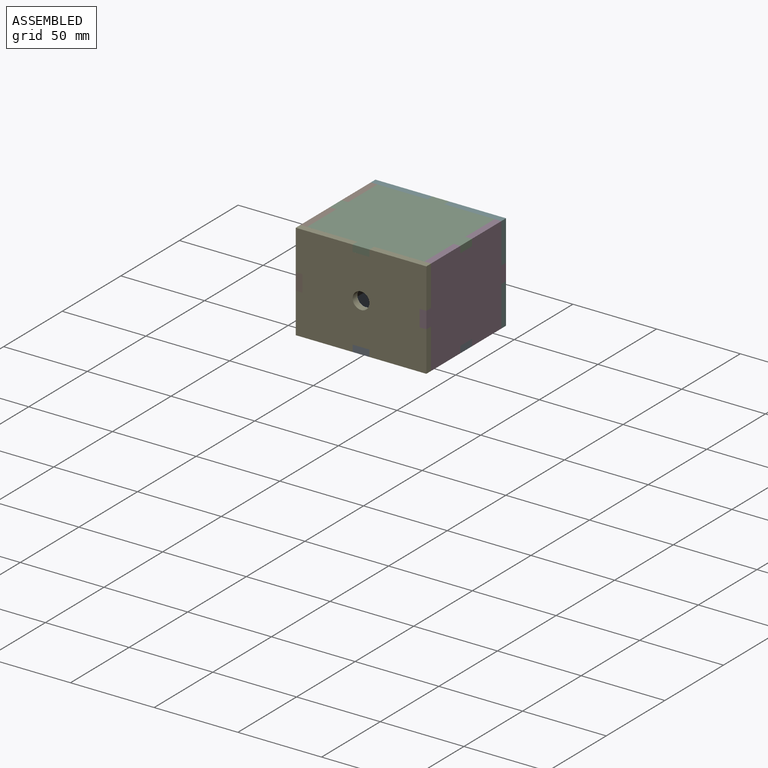
[diagram: assembled view]
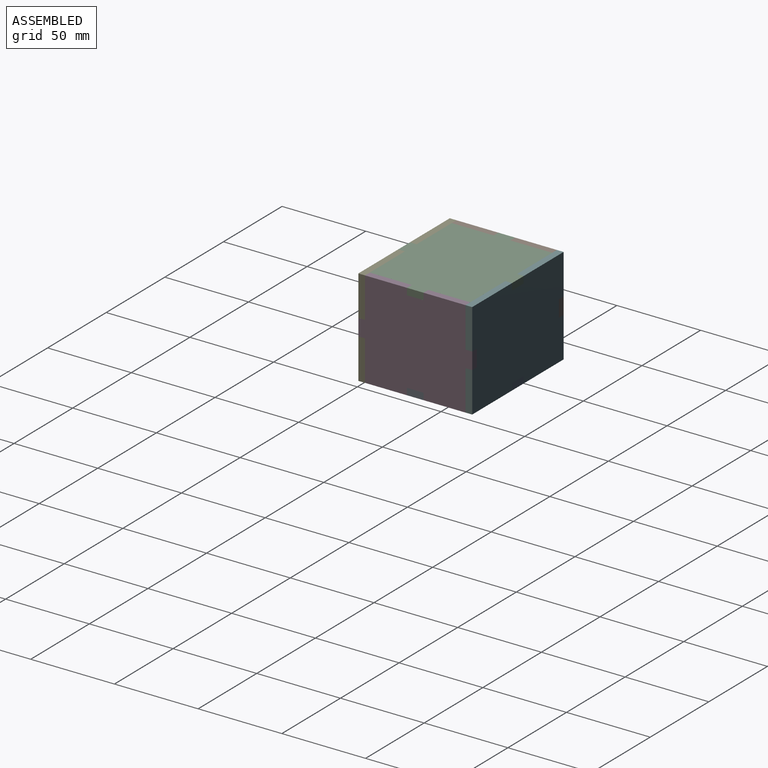
[diagram: assembled view, second angle]
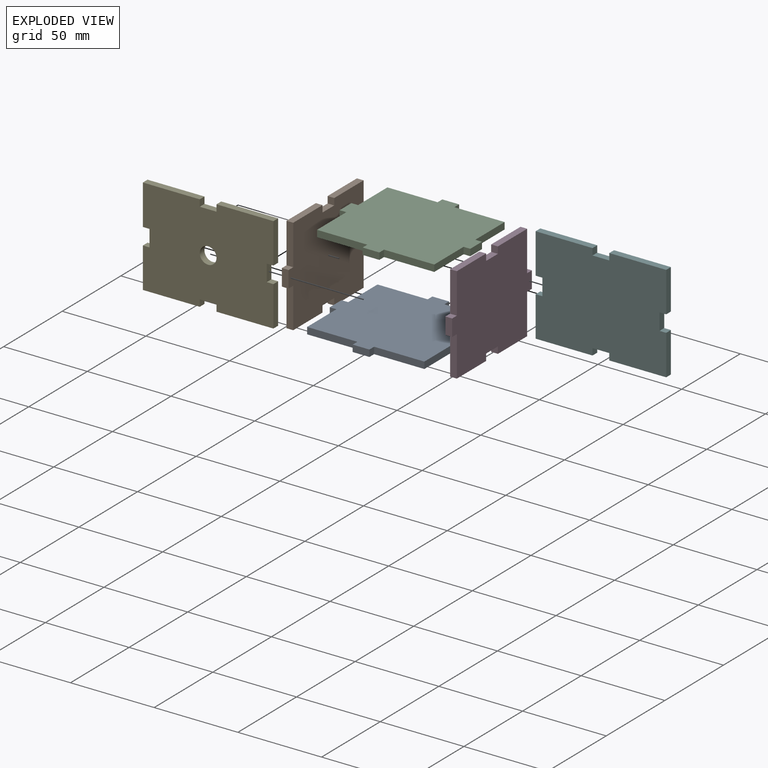
[diagram: exploded view]
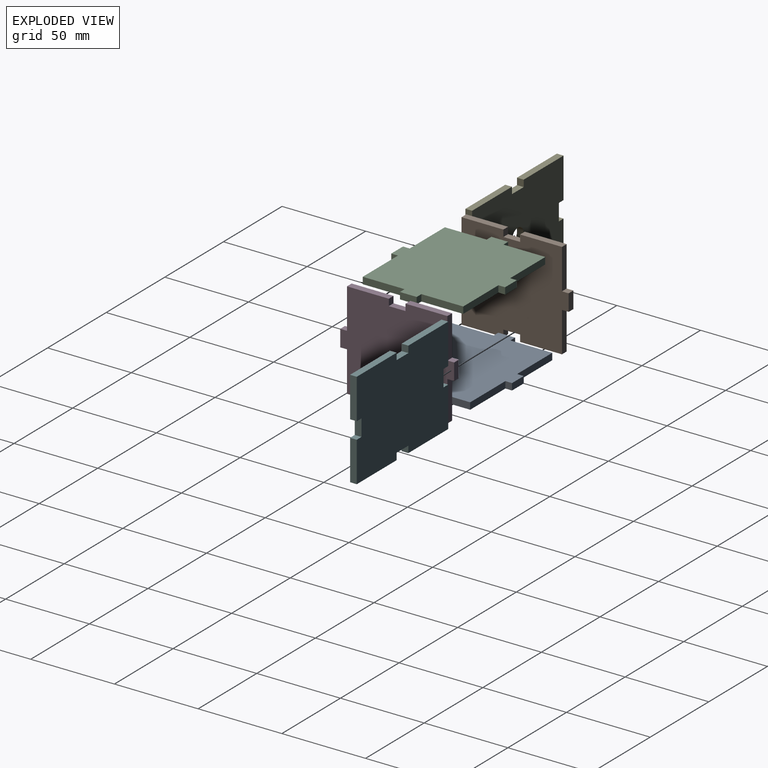
[diagram: exploded view, second angle]
ASSEMBLY  parts=6 mates=4
PART A: 22 faces, bbox 68x78x4 mm
  f0: plane 10x4mm, normal (0,1,0), area 40mm2, adj f1,f19,f20,f21
  f1: plane 4x4mm, normal (-1,0,0), area 16mm2, adj f0,f2,f20,f21
  f2: plane 25x4mm, normal (0,1,0), area 100mm2, adj f1,f3,f20,f21
  f3: plane 30x4mm, normal (-1,0,0), area 120mm2, adj f2,f4,f20,f21
  f4: plane 4x4mm, normal (0,1,0), area 16mm2, adj f3,f5,f20,f21
  f5: plane 10x4mm, normal (-1,0,0), area 40mm2, adj f4,f6,f20,f21
  f6: plane 4x4mm, normal (0,-1,0), area 16mm2, adj f5,f7,f20,f21
  f7: plane 30x4mm, normal (-1,0,0), area 120mm2, adj f6,f8,f20,f21
  f8: plane 25x4mm, normal (0,-1,0), area 100mm2, adj f7,f9,f20,f21
  f9: plane 4x4mm, normal (-1,0,0), area 16mm2, adj f8,f10,f20,f21
  f10: plane 10x4mm, normal (0,-1,0), area 40mm2, adj f9,f11,f20,f21
  f11: plane 4x4mm, normal (1,0,0), area 16mm2, adj f10,f12,f20,f21
  f12: plane 25x4mm, normal (0,-1,0), area 100mm2, adj f11,f13,f20,f21
  f13: plane 30x4mm, normal (1,0,0), area 120mm2, adj f12,f14,f20,f21
  f14: plane 4x4mm, normal (0,-1,0), area 16mm2, adj f13,f15,f20,f21
  f15: plane 10x4mm, normal (1,0,0), area 40mm2, adj f14,f16,f20,f21
  f16: plane 4x4mm, normal (0,1,0), area 16mm2, adj f15,f17,f20,f21
  f17: plane 30x4mm, normal (1,0,0), area 120mm2, adj f16,f18,f20,f21
  f18: plane 25x4mm, normal (0,1,0), area 100mm2, adj f17,f19,f20,f21
  f19: plane 4x4mm, normal (1,0,0), area 16mm2, adj f0,f18,f20,f21
  f20: plane 78x68mm, normal (0,0,1), area 4360mm2, adj f0,f1,f2,f3,f4,f5,f6,f7
  f21: plane 78x68mm, normal (0,0,-1), area 4360mm2, adj f0,f1,f2,f3,f4,f5,f6,f7
PART B: 22 faces, bbox 4x68x58 mm
  f0: plane 4x4mm, normal (0,0,1), area 16mm2, adj f1,f19,f20,f21
  f1: plane 24x4mm, normal (0,1,0), area 96mm2, adj f0,f2,f20,f21
  f2: plane 25x4mm, normal (0,0,1), area 100mm2, adj f1,f3,f20,f21
  f3: plane 4x4mm, normal (0,-1,0), area 16mm2, adj f2,f4,f20,f21
  f4: plane 10x4mm, normal (0,0,1), area 40mm2, adj f3,f5,f20,f21
  f5: plane 4x4mm, normal (0,1,0), area 16mm2, adj f4,f6,f20,f21
  f6: plane 25x4mm, normal (0,0,1), area 100mm2, adj f5,f7,f20,f21
  f7: plane 24x4mm, normal (0,-1,0), area 96mm2, adj f6,f8,f20,f21
  f8: plane 4x4mm, normal (0,0,1), area 16mm2, adj f7,f9,f20,f21
  f9: plane 10x4mm, normal (0,-1,0), area 40mm2, adj f8,f10,f20,f21
  f10: plane 4x4mm, normal (0,0,-1), area 16mm2, adj f9,f11,f20,f21
  f11: plane 24x4mm, normal (0,-1,0), area 96mm2, adj f10,f12,f20,f21
  f12: plane 25x4mm, normal (0,0,-1), area 100mm2, adj f11,f13,f20,f21
  f13: plane 4x4mm, normal (0,1,0), area 16mm2, adj f12,f14,f20,f21
  f14: plane 10x4mm, normal (0,0,-1), area 40mm2, adj f13,f15,f20,f21
  f15: plane 4x4mm, normal (0,-1,0), area 16mm2, adj f14,f16,f20,f21
  f16: plane 25x4mm, normal (0,0,-1), area 100mm2, adj f15,f17,f20,f21
  f17: plane 24x4mm, normal (0,1,0), area 96mm2, adj f16,f18,f20,f21
  f18: plane 4x4mm, normal (0,0,-1), area 16mm2, adj f17,f19,f20,f21
  f19: plane 10x4mm, normal (0,1,0), area 40mm2, adj f0,f18,f20,f21
  f20: plane 68x58mm, normal (1,0,0), area 3480mm2, adj f0,f1,f2,f3,f4,f5,f6,f7
  f21: plane 68x58mm, normal (-1,0,0), area 3480mm2, adj f0,f1,f2,f3,f4,f5,f6,f7
PART C: same geometry as A
PART D: same geometry as B
PART E: 23 faces, bbox 78x4x58 mm
  f0: plane 34x4mm, normal (0,0,1), area 136mm2, adj f1,f19,f21,f22
  f1: plane 24x4mm, normal (-1,0,0), area 96mm2, adj f0,f2,f21,f22
  f2: plane 4x4mm, normal (0,0,-1), area 16mm2, adj f1,f3,f21,f22
  f3: plane 10x4mm, normal (-1,0,0), area 40mm2, adj f2,f4,f21,f22
  f4: plane 4x4mm, normal (0,0,1), area 16mm2, adj f3,f5,f21,f22
  f5: plane 24x4mm, normal (-1,0,0), area 96mm2, adj f4,f6,f21,f22
  f6: plane 34x4mm, normal (0,0,-1), area 136mm2, adj f5,f7,f21,f22
  f7: plane 4x4mm, normal (1,0,0), area 16mm2, adj f6,f8,f21,f22
  f8: plane 10x4mm, normal (0,0,-1), area 40mm2, adj f7,f9,f21,f22
  f9: plane 4x4mm, normal (-1,0,0), area 16mm2, adj f8,f10,f21,f22
  f10: plane 34x4mm, normal (0,0,-1), area 136mm2, adj f9,f11,f21,f22
  f11: plane 24x4mm, normal (1,0,0), area 96mm2, adj f10,f12,f21,f22
  f12: plane 4x4mm, normal (0,0,1), area 16mm2, adj f11,f13,f21,f22
  f13: plane 10x4mm, normal (1,0,0), area 40mm2, adj f12,f14,f21,f22
  f14: plane 4x4mm, normal (0,0,-1), area 16mm2, adj f13,f15,f21,f22
  f15: plane 24x4mm, normal (1,0,0), area 96mm2, adj f14,f16,f21,f22
  f16: plane 34x4mm, normal (0,0,1), area 136mm2, adj f15,f17,f21,f22
  f17: plane 4x4mm, normal (-1,0,0), area 16mm2, adj f16,f18,f21,f22
  f18: plane 10x4mm, normal (0,0,1), area 40mm2, adj f17,f19,f21,f22
  f19: plane 4x4mm, normal (1,0,0), area 16mm2, adj f0,f18,f21,f22
  f20: cylinder r=5mm len=10mm, axis (0,1,0), area 125.7mm2, adj f21,f22
  f21: plane 78x58mm, normal (0,-1,0), area 4285.5mm2, adj f0,f1,f2,f3,f4,f5,f6,f7
  f22: plane 78x58mm, normal (0,1,0), area 4285.5mm2, adj f0,f1,f2,f3,f4,f5,f6,f7
PART F: 22 faces, bbox 78x4x58 mm
  f0: plane 34x4mm, normal (0,0,1), area 136mm2, adj f1,f19,f20,f21
  f1: plane 24x4mm, normal (-1,0,0), area 96mm2, adj f0,f2,f20,f21
  f2: plane 4x4mm, normal (0,0,-1), area 16mm2, adj f1,f3,f20,f21
  f3: plane 10x4mm, normal (-1,0,0), area 40mm2, adj f2,f4,f20,f21
  f4: plane 4x4mm, normal (0,0,1), area 16mm2, adj f3,f5,f20,f21
  f5: plane 24x4mm, normal (-1,0,0), area 96mm2, adj f4,f6,f20,f21
  f6: plane 34x4mm, normal (0,0,-1), area 136mm2, adj f5,f7,f20,f21
  f7: plane 4x4mm, normal (1,0,0), area 16mm2, adj f6,f8,f20,f21
  f8: plane 10x4mm, normal (0,0,-1), area 40mm2, adj f7,f9,f20,f21
  f9: plane 4x4mm, normal (-1,0,0), area 16mm2, adj f8,f10,f20,f21
  f10: plane 34x4mm, normal (0,0,-1), area 136mm2, adj f9,f11,f20,f21
  f11: plane 24x4mm, normal (1,0,0), area 96mm2, adj f10,f12,f20,f21
  f12: plane 4x4mm, normal (0,0,1), area 16mm2, adj f11,f13,f20,f21
  f13: plane 10x4mm, normal (1,0,0), area 40mm2, adj f12,f14,f20,f21
  f14: plane 4x4mm, normal (0,0,-1), area 16mm2, adj f13,f15,f20,f21
  f15: plane 24x4mm, normal (1,0,0), area 96mm2, adj f14,f16,f20,f21
  f16: plane 34x4mm, normal (0,0,1), area 136mm2, adj f15,f17,f20,f21
  f17: plane 4x4mm, normal (-1,0,0), area 16mm2, adj f16,f18,f20,f21
  f18: plane 10x4mm, normal (0,0,1), area 40mm2, adj f17,f19,f20,f21
  f19: plane 4x4mm, normal (1,0,0), area 16mm2, adj f0,f18,f20,f21
  f20: plane 78x58mm, normal (0,-1,0), area 4364mm2, adj f0,f1,f2,f3,f4,f5,f6,f7
  f21: plane 78x58mm, normal (0,1,0), area 4364mm2, adj f0,f1,f2,f3,f4,f5,f6,f7
PLACE A rot(axis=(0,0,-1),90deg) t=(-0.03,31.95,-29.05)mm fixed
PLACE B t=(-39.03,31.95,-0.05)mm
PLACE C rot(axis=(0,0,-1),90deg) t=(-0.03,31.95,24.95)mm
PLACE D t=(34.97,31.95,-0.05)mm
PLACE E t=(-0.03,1.95,-0.05)mm
PLACE F t=(-0.03,65.95,-0.05)mm
MATE planar C.f19 <-> D.f5  axis (0,-1,0) through (36.97,26.95,26.95)mm
MATE planar C.f11 <-> B.f5  axis (0,-1,0) through (-37.03,26.95,26.95)mm
MATE planar E.f9 <-> A.f16  axis (-1,0,0) through (4.97,-0.05,-27.05)mm
MATE planar F.f7 <-> A.f6  axis (1,0,0) through (-5.03,63.95,-27.05)mm
